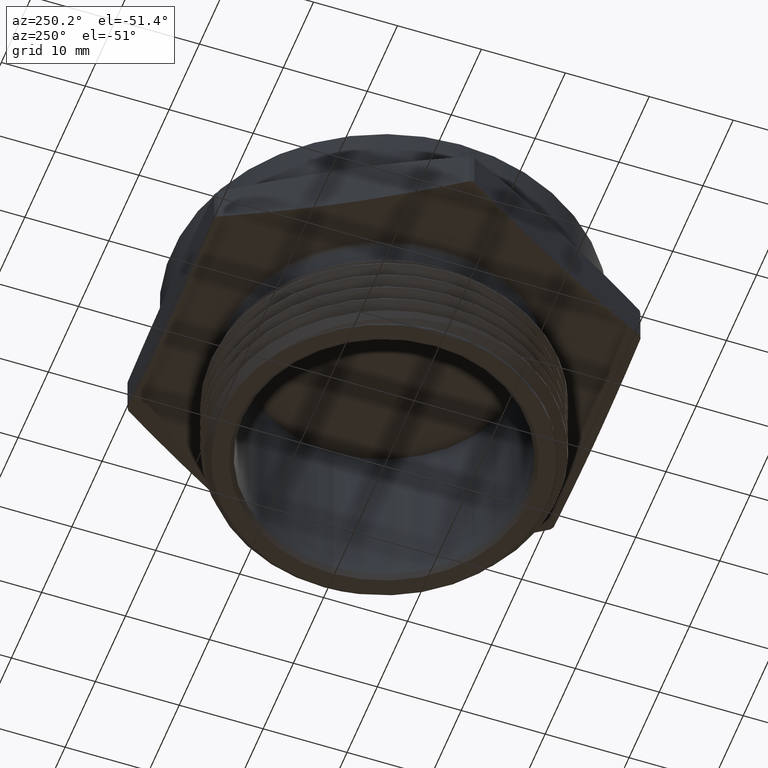
[diagram: clean part render]
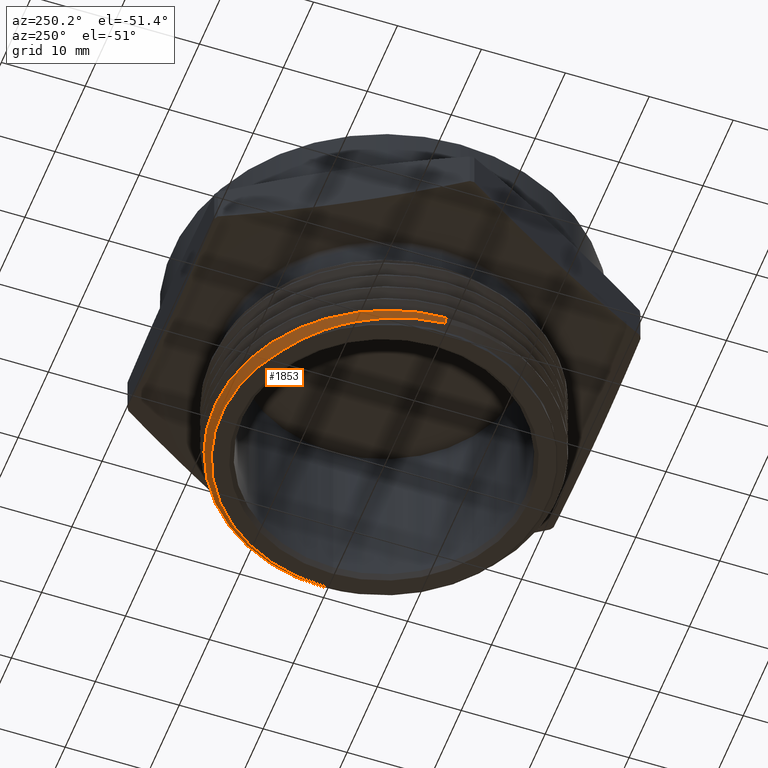
[diagram: same view with one face highlighted and labeled with its STEP entity id]
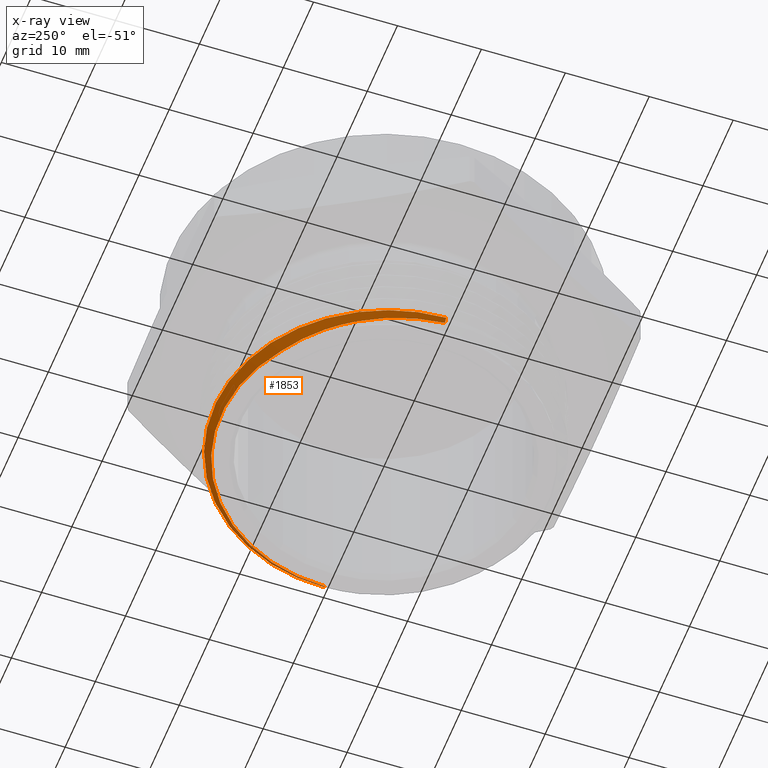
[diagram: x-ray of the same camera — body ghosted, the highlighted face saturated]
A machine part, auxiliary view. The second image highlights one B-rep face of the part: STEP entity #1853.
The next image is the same camera in x-ray: the body ghosted, the highlighted face saturated — about 0% of this face is hidden behind the body in this view.
In plain terms, the highlighted conical surface has half-angle 45 deg.
Its self-contained STEP definition (entity closure, byte-faithful):
#7 = ORIENTED_EDGE ( 'NONE', *, *, #1275, .T. ) ;
#106 = AXIS2_PLACEMENT_3D ( 'NONE', #3340, #3341, #3342 ) ;
#143 = AXIS2_PLACEMENT_3D ( 'NONE', #3018, #3019, #3017 ) ;
#208 = EDGE_CURVE ( 'NONE', #1417, #1421, #216, .T. ) ;
#209 = EDGE_CURVE ( 'NONE', #1417, #1401, #2592, .T. ) ;
#214 = B_SPLINE_CURVE_WITH_KNOTS ( 'NONE', 3,
 ( #3287, #3286, #3289, #3290, #3291, #3292, #3293, #3294, #3295, #3296, #3297, #3298, #3299, #3300, #3301, #3302, #3303, #3304, #3305, #3306, #3307, #3308, #3309, #3310, #3311, #3312, #3313, #3314, #3315, #3316, #3317, #3318, #3319, #3320, #3321, #3322, #3323, #3324, #3325, #3326, #3327, #3328, #3329, #3330, #3331, #3332, #3333, #3334, #3335, #3336, #3337 ),
 .UNSPECIFIED., .F., .F.,
 ( 4, 2, 2, 2, 2, 2, 2, 2, 2, 2, 2, 2, 2, 2, 2, 2, 2, 2, 2, 2, 2, 2, 2, 1, 2, 4 ),
 ( 0.05049470329575307700, 0.05449899081845071400, 0.05550006269912512200, 0.05650113457979953600, 0.05850327834114835100, 0.06250756586384599600, 0.06450970962519481100, 0.06651185338654362600, 0.07051614090924125700, 0.07251828467059007200, 0.07452042843193890100, 0.07852471595463653100, 0.08052685971598533300, 0.08252900347733416200, 0.08653329100003179200, 0.09053757852272942300, 0.09253972228407822400, 0.09454186604542703900, 0.09854615356812467000, 0.1005482973294734800, 0.1025504410908222900, 0.1065547286135199200, 0.1085568723748687500, 0.1105590161362175600, 0.1125611598975663800, 0.1145633036589151900 ),
 .UNSPECIFIED. ) ;
#216 = B_SPLINE_CURVE_WITH_KNOTS ( 'NONE', 3,
 ( #3176, #3185, #3196, #3197, #3198, #3199, #3200, #3201, #3202, #3203, #3204, #3205, #3206, #3207, #3208, #3209, #3210, #3211, #3212, #3213 ),
 .UNSPECIFIED., .F., .F.,
 ( 4, 2, 2, 2, 2, 2, 2, 2, 2, 4 ),
 ( 0.01224813102389400200, 0.01469252175664076700, 0.01713691248938753100, 0.02202569395488106200, 0.02324788932125444400, 0.02447008468762782600, 0.02691447542037458300, 0.02935886615312133900, 0.03058106151949471800, 0.03180325688586808900 ),
 .UNSPECIFIED. ) ;
#1258 = ORIENTED_EDGE ( 'NONE', *, *, #1276, .F. ) ;
#1259 = ORIENTED_EDGE ( 'NONE', *, *, #1274, .F. ) ;
#1261 = ORIENTED_EDGE ( 'NONE', *, *, #209, .T. ) ;
#1263 = ORIENTED_EDGE ( 'NONE', *, *, #208, .F. ) ;
#1274 = EDGE_CURVE ( 'NONE', #1389, #1401, #214, .T. ) ;
#1275 = EDGE_CURVE ( 'NONE', #1300, #1421, #2600, .T. ) ;
#1276 = EDGE_CURVE ( 'NONE', #1300, #1389, #2599, .T. ) ;
#1300 = VERTEX_POINT ( 'NONE', #3362 ) ;
#1389 = VERTEX_POINT ( 'NONE', #2964 ) ;
#1401 = VERTEX_POINT ( 'NONE', #2974 ) ;
#1417 = VERTEX_POINT ( 'NONE', #2990 ) ;
#1421 = VERTEX_POINT ( 'NONE', #2994 ) ;
#1606 = EDGE_LOOP ( 'NONE', ( #1263, #1261, #1259, #1258, #7 ) ) ;
#1853 = ADVANCED_FACE ( 'NONE', ( #2688 ), #2696, .T. ) ;
#2589 = VECTOR ( 'NONE', #3215, 39.37007874015748100 ) ;
#2592 = LINE ( 'NONE', #3214, #2589 ) ;
#2599 = LINE ( 'NONE', #3281, #2604 ) ;
#2600 = CIRCLE ( 'NONE', #106, 0.7629000000000000200 ) ;
#2604 = VECTOR ( 'NONE', #3288, 39.37007874015748100 ) ;
#2688 = FACE_OUTER_BOUND ( 'NONE', #1606, .T. ) ;
#2696 = CONICAL_SURFACE ( 'NONE', #143, 0.7629000000000000200, 0.7853981633974606000 ) ;
#2964 = CARTESIAN_POINT ( 'NONE',  ( 0.7843685522378660600, -4.517517208262828100E-013, -0.5585314477621349200 ) ) ;
#2974 = CARTESIAN_POINT ( 'NONE',  ( -0.8107841604135194200, -3.902633076766084100E-016, -0.5321158395864819000 ) ) ;
#2990 = CARTESIAN_POINT ( 'NONE',  ( -0.7937295318045281000, -6.827933393517710000E-013, -0.5491704681954722200 ) ) ;
#2994 = CARTESIAN_POINT ( 'NONE',  ( -0.4238102078004878900, 0.6343510997579395700, -0.5799999999999998500 ) ) ;
#3017 = DIRECTION ( 'NONE',  ( 1.000000000000000000, 0.0000000000000000000, 0.0000000000000000000 ) ) ;
#3018 = CARTESIAN_POINT ( 'NONE',  ( 0.0000000000000000000, 0.0000000000000000000, -0.5799999999999999600 ) ) ;
#3019 = DIRECTION ( 'NONE',  ( -0.0000000000000000000, -0.0000000000000000000, 1.000000000000000000 ) ) ;
#3176 = CARTESIAN_POINT ( 'NONE',  ( -0.7937295318045281000, -6.827933393517710000E-013, -0.5491704681954722200 ) ) ;
#3185 = CARTESIAN_POINT ( 'NONE',  ( -0.7925191256680242900, 0.03166441959180962100, -0.5503808743320036700 ) ) ;
#3196 = CARTESIAN_POINT ( 'NONE',  ( -0.7893964078599841100, 0.06321324273626367800, -0.5516158404081771300 ) ) ;
#3197 = CARTESIAN_POINT ( 'NONE',  ( -0.7792715016821684100, 0.1260763320166351500, -0.5541368332317945200 ) ) ;
#3198 = CARTESIAN_POINT ( 'NONE',  ( -0.7721960205476199300, 0.1575964073865974700, -0.5554317384765789000 ) ) ;
#3199 = CARTESIAN_POINT ( 'NONE',  ( -0.7455271895687627400, 0.2495599731221181400, -0.5593039719888052200 ) ) ;
#3200 = CARTESIAN_POINT ( 'NONE',  ( -0.7206228137085027900, 0.3078319150698862200, -0.5618830346133930600 ) ) ;
#3201 = CARTESIAN_POINT ( 'NONE',  ( -0.6805795459026152700, 0.3768727660269831600, -0.5651036186350577600 ) ) ;
#3202 = CARTESIAN_POINT ( 'NONE',  ( -0.6720911122755280900, 0.3905295140647754300, -0.5657495325306480800 ) ) ;
#3203 = CARTESIAN_POINT ( 'NONE',  ( -0.6543226927252973100, 0.4172425710542926300, -0.5670310459570595500 ) ) ;
#3204 = CARTESIAN_POINT ( 'NONE',  ( -0.6450718594041390300, 0.4302614195240850900, -0.5676647821409953600 ) ) ;
#3205 = CARTESIAN_POINT ( 'NONE',  ( -0.6162449973591045400, 0.4683284304998210900, -0.5695452198918222700 ) ) ;
#3206 = CARTESIAN_POINT ( 'NONE',  ( -0.5955830027817364800, 0.4923751640460646800, -0.5707928407791376100 ) ) ;
#3207 = CARTESIAN_POINT ( 'NONE',  ( -0.5513517376083904000, 0.5377840489271485900, -0.5733563223620896700 ) ) ;
#3208 = CARTESIAN_POINT ( 'NONE',  ( -0.5277913336862605200, 0.5591550364873197900, -0.5746601960075562500 ) ) ;
#3209 = CARTESIAN_POINT ( 'NONE',  ( -0.4902090661354244200, 0.5891425320347987200, -0.5766510593824867300 ) ) ;
#3210 = CARTESIAN_POINT ( 'NONE',  ( -0.4773060911194296200, 0.5987890438621417100, -0.5773204907385698400 ) ) ;
#3211 = CARTESIAN_POINT ( 'NONE',  ( -0.4509874410965779600, 0.6171975638797904100, -0.5786585026852364400 ) ) ;
#3212 = CARTESIAN_POINT ( 'NONE',  ( -0.4375423061353441200, 0.6259840581029204600, -0.5793286651287850000 ) ) ;
#3213 = CARTESIAN_POINT ( 'NONE',  ( -0.4238102078004878900, 0.6343510997579395700, -0.5799999999999998500 ) ) ;
#3214 = CARTESIAN_POINT ( 'NONE',  ( -0.7629000000000000200, 9.342830430695159500E-017, -0.5799999999999999600 ) ) ;
#3215 = DIRECTION ( 'NONE',  ( -0.7071067811865562300, 8.659560562355040100E-017, 0.7071067811865388000 ) ) ;
#3281 = CARTESIAN_POINT ( 'NONE',  ( 0.7629000000000000200, 0.0000000000000000000, -0.5799999999999999600 ) ) ;
#3286 = CARTESIAN_POINT ( 'NONE',  ( 0.7849098401505560900, 0.05222325360227573300, -0.5579901598494744200 ) ) ;
#3287 = CARTESIAN_POINT ( 'NONE',  ( 0.7843685522378660600, -4.517517208262828100E-013, -0.5585314477621349200 ) ) ;
#3288 = DIRECTION ( 'NONE',  ( 0.7071067811865562300, 0.0000000000000000000, 0.7071067811865388000 ) ) ;
#3289 = CARTESIAN_POINT ( 'NONE',  ( 0.7802980725876257400, 0.1039698655896599100, -0.5574375402562342700 ) ) ;
#3290 = CARTESIAN_POINT ( 'NONE',  ( 0.7681050701913475500, 0.1680585354015114700, -0.5567328110608680300 ) ) ;
#3291 = CARTESIAN_POINT ( 'NONE',  ( 0.7653420891660032100, 0.1808462652623082100, -0.5565911603570594700 ) ) ;
#3292 = CARTESIAN_POINT ( 'NONE',  ( 0.7591554789992756000, 0.2063606172911590700, -0.5563064252387208700 ) ) ;
#3293 = CARTESIAN_POINT ( 'NONE',  ( 0.7557245544818567100, 0.2191056333674799800, -0.5561631266753965800 ) ) ;
#3294 = CARTESIAN_POINT ( 'NONE',  ( 0.7445496571956923300, 0.2568291145429098500, -0.5557357895453138900 ) ) ;
#3295 = CARTESIAN_POINT ( 'NONE',  ( 0.7358980880405344700, 0.2814295795128439700, -0.5554528411527934800 ) ) ;
#3296 = CARTESIAN_POINT ( 'NONE',  ( 0.7064348601227022900, 0.3536294079732897300, -0.5546096570042735600 ) ) ;
#3297 = CARTESIAN_POINT ( 'NONE',  ( 0.6821495398929349200, 0.3996431175226584600, -0.5540550351689465000 ) ) ;
#3298 = CARTESIAN_POINT ( 'NONE',  ( 0.6385083540903436800, 0.4653710016211468100, -0.5532345467933824600 ) ) ;
#3299 = CARTESIAN_POINT ( 'NONE',  ( 0.6228574233794337300, 0.4865547259883853900, -0.5529648062260881200 ) ) ;
#3300 = CARTESIAN_POINT ( 'NONE',  ( 0.5895996165825605500, 0.5271904896183680100, -0.5524139094579307900 ) ) ;
#3301 = CARTESIAN_POINT ( 'NONE',  ( 0.5718855851871903500, 0.5467600965717269700, -0.5521340011598591100 ) ) ;
#3302 = CARTESIAN_POINT ( 'NONE',  ( 0.5162041441802924800, 0.6024380378657137000, -0.5512922280378317300 ) ) ;
#3303 = CARTESIAN_POINT ( 'NONE',  ( 0.4759601662284342900, 0.6353731882219043600, -0.5507315106699747200 ) ) ;
#3304 = CARTESIAN_POINT ( 'NONE',  ( 0.4110345385376979500, 0.6786679633918713000, -0.5498911518524182100 ) ) ;
#3305 = CARTESIAN_POINT ( 'NONE',  ( 0.3886271778830104900, 0.6920741404348264000, -0.5496111504843589300 ) ) ;
#3306 = CARTESIAN_POINT ( 'NONE',  ( 0.3422339456975719300, 0.7167719801774480300, -0.5490513716878006000 ) ) ;
#3307 = CARTESIAN_POINT ( 'NONE',  ( 0.3184195332276701400, 0.7279593597949155500, -0.5487737477039657000 ) ) ;
#3308 = CARTESIAN_POINT ( 'NONE',  ( 0.2460942943358261400, 0.7576854671054598100, -0.5479582584272935100 ) ) ;
#3309 = CARTESIAN_POINT ( 'NONE',  ( 0.1963395374207994300, 0.7726254277881905400, -0.5474331708305727500 ) ) ;
#3310 = CARTESIAN_POINT ( 'NONE',  ( 0.1194031495039700600, 0.7877252110301268300, -0.5466053479544984400 ) ) ;
#3311 = CARTESIAN_POINT ( 'NONE',  ( 0.09323430269082151600, 0.7915337761312417600, -0.5463240677549817700 ) ) ;
#3312 = CARTESIAN_POINT ( 'NONE',  ( 0.04111754077511085200, 0.7965045666227562600, -0.5457644790956236400 ) ) ;
#3313 = CARTESIAN_POINT ( 'NONE',  ( 0.01509871843854046500, 0.7976947800845364300, -0.5454854044967768500 ) ) ;
#3314 = CARTESIAN_POINT ( 'NONE',  ( -0.06284172374663532500, 0.7974666701093292600, -0.5446502979802740900 ) ) ;
#3315 = CARTESIAN_POINT ( 'NONE',  ( -0.1146554131751080800, 0.7922855662275617400, -0.5440962969879179500 ) ) ;
#3316 = CARTESIAN_POINT ( 'NONE',  ( -0.2179347485812231900, 0.7714457384755331000, -0.5429942831969799500 ) ) ;
#3317 = CARTESIAN_POINT ( 'NONE',  ( -0.2676911859848846700, 0.7561238603626296900, -0.5424737465505797800 ) ) ;
#3318 = CARTESIAN_POINT ( 'NONE',  ( -0.3396409272708763600, 0.7261544792713093800, -0.5416626018276141700 ) ) ;
#3319 = CARTESIAN_POINT ( 'NONE',  ( -0.3631727164529430800, 0.7149898669810576000, -0.5413890146315549800 ) ) ;
#3320 = CARTESIAN_POINT ( 'NONE',  ( -0.4093129175631240500, 0.6902577581073288100, -0.5408353112645542000 ) ) ;
#3321 = CARTESIAN_POINT ( 'NONE',  ( -0.4319767746900742800, 0.6766368544161750500, -0.5405543858787661400 ) ) ;
#3322 = CARTESIAN_POINT ( 'NONE',  ( -0.4971184869616282500, 0.6330112533308502900, -0.5397197534691141600 ) ) ;
#3323 = CARTESIAN_POINT ( 'NONE',  ( -0.5372572189242996700, 0.6000449996786742000, -0.5391685250757131100 ) ) ;
#3324 = CARTESIAN_POINT ( 'NONE',  ( -0.5925763651731342800, 0.5448245621569858300, -0.5383493224128560500 ) ) ;
#3325 = CARTESIAN_POINT ( 'NONE',  ( -0.6102480818503696100, 0.5253846438990057400, -0.5380766837427001200 ) ) ;
#3326 = CARTESIAN_POINT ( 'NONE',  ( -0.6436544352325192000, 0.4847766867381493900, -0.5375377877353764200 ) ) ;
#3327 = CARTESIAN_POINT ( 'NONE',  ( -0.6592316245991120000, 0.4638103035220251200, -0.5372762619450981400 ) ) ;
#3328 = CARTESIAN_POINT ( 'NONE',  ( -0.7027223890290579300, 0.3990050726147093600, -0.5364777141062597700 ) ) ;
#3329 = CARTESIAN_POINT ( 'NONE',  ( -0.7274178647827072000, 0.3532733989528466500, -0.5359349589971342800 ) ) ;
#3330 = CARTESIAN_POINT ( 'NONE',  ( -0.7578722302907654500, 0.2808004996238801000, -0.5351050561671454300 ) ) ;
#3331 = CARTESIAN_POINT ( 'NONE',  ( -0.7669043927095844400, 0.2559753839048832800, -0.5348256496865205800 ) ) ;
#3332 = CARTESIAN_POINT ( 'NONE',  ( -0.7823568950604808900, 0.2060967188215066500, -0.5342736464412564100 ) ) ;
#3333 = CARTESIAN_POINT ( 'NONE',  ( -0.7953192880695001400, 0.1557245798626364900, -0.5337253817813464300 ) ) ;
#3334 = CARTESIAN_POINT ( 'NONE',  ( -0.8033823476709265300, 0.1043815227604766700, -0.5331844463334791700 ) ) ;
#3335 = CARTESIAN_POINT ( 'NONE',  ( -0.8089671283802132300, 0.05254733671267901300, -0.5326471898217455300 ) ) ;
#3336 = CARTESIAN_POINT ( 'NONE',  ( -0.8105205374334609700, 0.02629080864333767000, -0.5323794625665400100 ) ) ;
#3337 = CARTESIAN_POINT ( 'NONE',  ( -0.8107841604135194200, -3.902633076766084100E-016, -0.5321158395864819000 ) ) ;
#3340 = CARTESIAN_POINT ( 'NONE',  ( 0.0000000000000000000, 0.0000000000000000000, -0.5799999999999999600 ) ) ;
#3341 = DIRECTION ( 'NONE',  ( -0.0000000000000000000, -0.0000000000000000000, 1.000000000000000000 ) ) ;
#3342 = DIRECTION ( 'NONE',  ( 1.000000000000000000, 0.0000000000000000000, 0.0000000000000000000 ) ) ;
#3362 = CARTESIAN_POINT ( 'NONE',  ( 0.7629000000000000200, 0.0000000000000000000, -0.5799999999999999600 ) ) ;